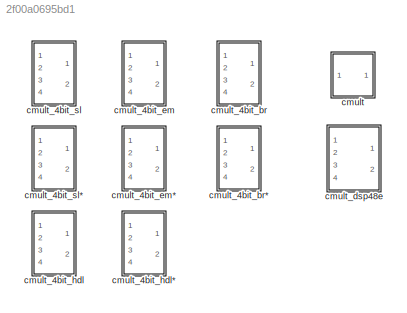
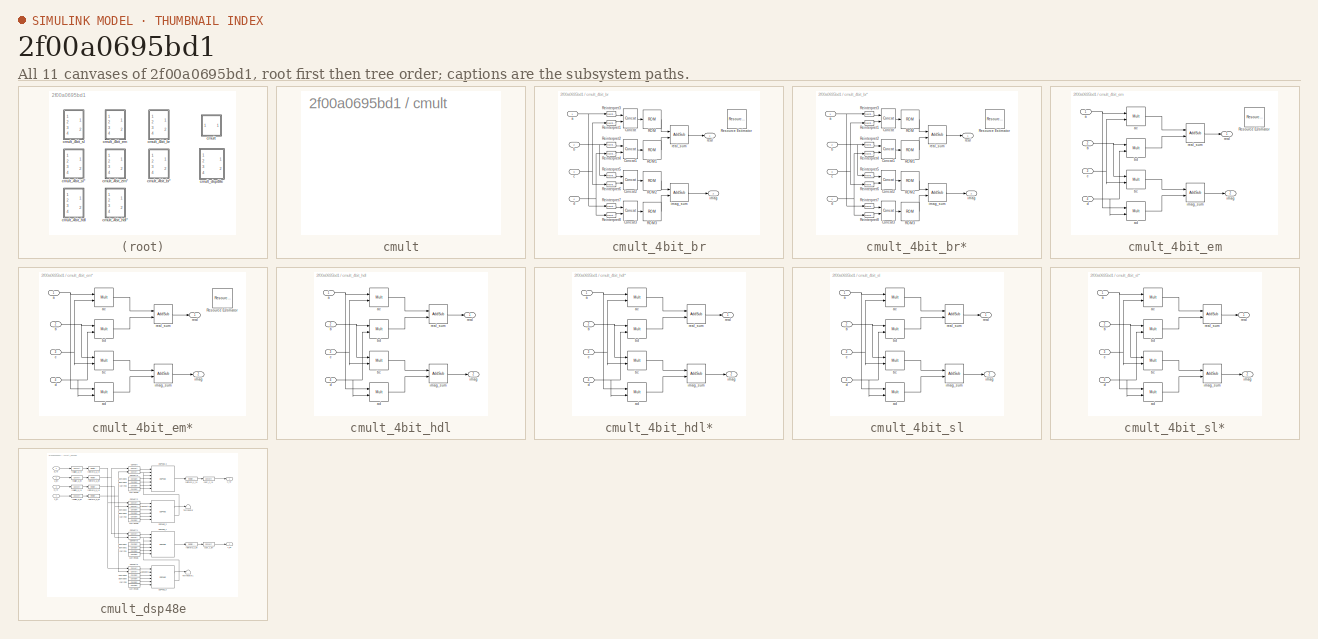
[diagram: thumbnail index - all 11 canvases of the model, root first then tree order]
MODEL slx_2f00a0695bd1
KIND library
CONFIG AbsTol = auto
CONFIG EnableMultiTasking = off
CONFIG FixedStep = auto
CONFIG MaxStep = auto
CONFIG MinStep = auto
CONFIG RelTol = 1e-3
CONFIG SampleTimeConstraint = Unconstrained
CONFIG Solver = ode45
CONFIG SolverName = ode45
CONFIG StartTime = 0.0
CONFIG StopTime = 10.0
BLOCK [SubSystem] cmult
  Ports = []
  RequestExecContextInheritance = off
  UserDataPersistent = on
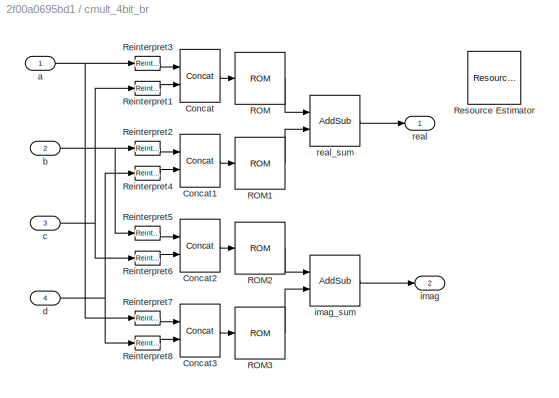
BLOCK [SubSystem] cmult_4bit_br
  Ports = [4, 2]
  RequestExecContextInheritance = off
BLOCK [SubSystem] cmult_4bit_br*
  Ports = [4, 2]
  RequestExecContextInheritance = off
BLOCK [Reference] cmult_4bit_br*/Concat  REF=xbsIndex_r4/Concat
  Ports = [2, 1]
  SourceBlock = xbsIndex_r4/Concat
  SourceType = Xilinx Bus Concatenator Block
BLOCK [Reference] cmult_4bit_br*/Concat1  REF=xbsIndex_r4/Concat
  Ports = [2, 1]
  SourceBlock = xbsIndex_r4/Concat
  SourceType = Xilinx Bus Concatenator Block
BLOCK [Reference] cmult_4bit_br*/Concat2  REF=xbsIndex_r4/Concat
  Ports = [2, 1]
  SourceBlock = xbsIndex_r4/Concat
  SourceType = Xilinx Bus Concatenator Block
BLOCK [Reference] cmult_4bit_br*/Concat3  REF=xbsIndex_r4/Concat
  Ports = [2, 1]
  SourceBlock = xbsIndex_r4/Concat
  SourceType = Xilinx Bus Concatenator Block
BLOCK [Reference] cmult_4bit_br*/ROM  REF=xbsIndex_r4/ROM
  Ports = [1, 1]
  SourceBlock = xbsIndex_r4/ROM
  SourceType = Xilinx Single Port Read-Only Memory Block
BLOCK [Reference] cmult_4bit_br*/ROM1  REF=xbsIndex_r4/ROM
  Ports = [1, 1]
  SourceBlock = xbsIndex_r4/ROM
  SourceType = Xilinx Single Port Read-Only Memory Block
BLOCK [Reference] cmult_4bit_br*/ROM2  REF=xbsIndex_r4/ROM
  Ports = [1, 1]
  SourceBlock = xbsIndex_r4/ROM
  SourceType = Xilinx Single Port Read-Only Memory Block
BLOCK [Reference] cmult_4bit_br*/ROM3  REF=xbsIndex_r4/ROM
  Ports = [1, 1]
  SourceBlock = xbsIndex_r4/ROM
  SourceType = Xilinx Single Port Read-Only Memory Block
BLOCK [Reference] cmult_4bit_br*/Reinterpret1  REF=xbsIndex_r4/Reinterpret
  Ports = [1, 1]
  SourceBlock = xbsIndex_r4/Reinterpret
  SourceType = Xilinx Type Reinterpreter Block
BLOCK [Reference] cmult_4bit_br*/Reinterpret2  REF=xbsIndex_r4/Reinterpret
  Ports = [1, 1]
  SourceBlock = xbsIndex_r4/Reinterpret
  SourceType = Xilinx Type Reinterpreter Block
BLOCK [Reference] cmult_4bit_br*/Reinterpret3  REF=xbsIndex_r4/Reinterpret
  Ports = [1, 1]
  SourceBlock = xbsIndex_r4/Reinterpret
  SourceType = Xilinx Type Reinterpreter Block
BLOCK [Reference] cmult_4bit_br*/Reinterpret4  REF=xbsIndex_r4/Reinterpret
  Ports = [1, 1]
  SourceBlock = xbsIndex_r4/Reinterpret
  SourceType = Xilinx Type Reinterpreter Block
BLOCK [Reference] cmult_4bit_br*/Reinterpret5  REF=xbsIndex_r4/Reinterpret
  Ports = [1, 1]
  SourceBlock = xbsIndex_r4/Reinterpret
  SourceType = Xilinx Type Reinterpreter Block
BLOCK [Reference] cmult_4bit_br*/Reinterpret6  REF=xbsIndex_r4/Reinterpret
  Ports = [1, 1]
  SourceBlock = xbsIndex_r4/Reinterpret
  SourceType = Xilinx Type Reinterpreter Block
BLOCK [Reference] cmult_4bit_br*/Reinterpret7  REF=xbsIndex_r4/Reinterpret
  Ports = [1, 1]
  SourceBlock = xbsIndex_r4/Reinterpret
  SourceType = Xilinx Type Reinterpreter Block
BLOCK [Reference] cmult_4bit_br*/Reinterpret8  REF=xbsIndex_r4/Reinterpret
  Ports = [1, 1]
  SourceBlock = xbsIndex_r4/Reinterpret
  SourceType = Xilinx Type Reinterpreter Block
BLOCK [Reference] cmult_4bit_br*/Resource Estimator  REF=xbsIndex_r4/Resource Estimator
  AttributesFormatString = Resource\nEstimator
  Ports = []
  SourceBlock = xbsIndex_r4/Resource Estimator
  SourceType = Xilinx Resource Estimator Block
  Tag = resEstTag
BLOCK [Inport] cmult_4bit_br*/a
  IconDisplay = Port number
BLOCK [Inport] cmult_4bit_br*/b
  IconDisplay = Port number
  Port = 2
BLOCK [Inport] cmult_4bit_br*/c
  IconDisplay = Port number
  Port = 3
BLOCK [Inport] cmult_4bit_br*/d
  IconDisplay = Port number
  Port = 4
BLOCK [Outport] cmult_4bit_br*/imag
  IconDisplay = Port number
  Port = 2
BLOCK [Reference] cmult_4bit_br*/imag_sum  REF=xbsIndex_r4/AddSub
  Ports = [2, 1]
  SourceBlock = xbsIndex_r4/AddSub
  SourceType = Xilinx Adder/Subtracter Block
BLOCK [Outport] cmult_4bit_br*/real
  IconDisplay = Port number
BLOCK [Reference] cmult_4bit_br*/real_sum  REF=xbsIndex_r4/AddSub
  Ports = [2, 1]
  SourceBlock = xbsIndex_r4/AddSub
  SourceType = Xilinx Adder/Subtracter Block
BLOCK [Reference] cmult_4bit_br/Concat  REF=xbsIndex_r4/Concat
  Ports = [2, 1]
  SourceBlock = xbsIndex_r4/Concat
  SourceType = Xilinx Bus Concatenator Block
BLOCK [Reference] cmult_4bit_br/Concat1  REF=xbsIndex_r4/Concat
  Ports = [2, 1]
  SourceBlock = xbsIndex_r4/Concat
  SourceType = Xilinx Bus Concatenator Block
BLOCK [Reference] cmult_4bit_br/Concat2  REF=xbsIndex_r4/Concat
  Ports = [2, 1]
  SourceBlock = xbsIndex_r4/Concat
  SourceType = Xilinx Bus Concatenator Block
BLOCK [Reference] cmult_4bit_br/Concat3  REF=xbsIndex_r4/Concat
  Ports = [2, 1]
  SourceBlock = xbsIndex_r4/Concat
  SourceType = Xilinx Bus Concatenator Block
BLOCK [Reference] cmult_4bit_br/ROM  REF=xbsIndex_r4/ROM
  Ports = [1, 1]
  SourceBlock = xbsIndex_r4/ROM
  SourceType = Xilinx Single Port Read-Only Memory Block
BLOCK [Reference] cmult_4bit_br/ROM1  REF=xbsIndex_r4/ROM
  Ports = [1, 1]
  SourceBlock = xbsIndex_r4/ROM
  SourceType = Xilinx Single Port Read-Only Memory Block
BLOCK [Reference] cmult_4bit_br/ROM2  REF=xbsIndex_r4/ROM
  Ports = [1, 1]
  SourceBlock = xbsIndex_r4/ROM
  SourceType = Xilinx Single Port Read-Only Memory Block
BLOCK [Reference] cmult_4bit_br/ROM3  REF=xbsIndex_r4/ROM
  Ports = [1, 1]
  SourceBlock = xbsIndex_r4/ROM
  SourceType = Xilinx Single Port Read-Only Memory Block
BLOCK [Reference] cmult_4bit_br/Reinterpret1  REF=xbsIndex_r4/Reinterpret
  Ports = [1, 1]
  SourceBlock = xbsIndex_r4/Reinterpret
  SourceType = Xilinx Type Reinterpreter Block
BLOCK [Reference] cmult_4bit_br/Reinterpret2  REF=xbsIndex_r4/Reinterpret
  Ports = [1, 1]
  SourceBlock = xbsIndex_r4/Reinterpret
  SourceType = Xilinx Type Reinterpreter Block
BLOCK [Reference] cmult_4bit_br/Reinterpret3  REF=xbsIndex_r4/Reinterpret
  Ports = [1, 1]
  SourceBlock = xbsIndex_r4/Reinterpret
  SourceType = Xilinx Type Reinterpreter Block
BLOCK [Reference] cmult_4bit_br/Reinterpret4  REF=xbsIndex_r4/Reinterpret
  Ports = [1, 1]
  SourceBlock = xbsIndex_r4/Reinterpret
  SourceType = Xilinx Type Reinterpreter Block
BLOCK [Reference] cmult_4bit_br/Reinterpret5  REF=xbsIndex_r4/Reinterpret
  Ports = [1, 1]
  SourceBlock = xbsIndex_r4/Reinterpret
  SourceType = Xilinx Type Reinterpreter Block
BLOCK [Reference] cmult_4bit_br/Reinterpret6  REF=xbsIndex_r4/Reinterpret
  Ports = [1, 1]
  SourceBlock = xbsIndex_r4/Reinterpret
  SourceType = Xilinx Type Reinterpreter Block
BLOCK [Reference] cmult_4bit_br/Reinterpret7  REF=xbsIndex_r4/Reinterpret
  Ports = [1, 1]
  SourceBlock = xbsIndex_r4/Reinterpret
  SourceType = Xilinx Type Reinterpreter Block
BLOCK [Reference] cmult_4bit_br/Reinterpret8  REF=xbsIndex_r4/Reinterpret
  Ports = [1, 1]
  SourceBlock = xbsIndex_r4/Reinterpret
  SourceType = Xilinx Type Reinterpreter Block
BLOCK [Reference] cmult_4bit_br/Resource Estimator  REF=xbsIndex_r4/Resource Estimator
  AttributesFormatString = Resource\nEstimator
  Ports = []
  SourceBlock = xbsIndex_r4/Resource Estimator
  SourceType = Xilinx Resource Estimator Block
  Tag = resEstTag
BLOCK [Inport] cmult_4bit_br/a
  IconDisplay = Port number
BLOCK [Inport] cmult_4bit_br/b
  IconDisplay = Port number
  Port = 2
BLOCK [Inport] cmult_4bit_br/c
  IconDisplay = Port number
  Port = 3
BLOCK [Inport] cmult_4bit_br/d
  IconDisplay = Port number
  Port = 4
BLOCK [Outport] cmult_4bit_br/imag
  IconDisplay = Port number
  Port = 2
BLOCK [Reference] cmult_4bit_br/imag_sum  REF=xbsIndex_r4/AddSub
  Ports = [2, 1]
  SourceBlock = xbsIndex_r4/AddSub
  SourceType = Xilinx Adder/Subtracter Block
BLOCK [Outport] cmult_4bit_br/real
  IconDisplay = Port number
BLOCK [Reference] cmult_4bit_br/real_sum  REF=xbsIndex_r4/AddSub
  Ports = [2, 1]
  SourceBlock = xbsIndex_r4/AddSub
  SourceType = Xilinx Adder/Subtracter Block
BLOCK [SubSystem] cmult_4bit_em
  Ports = [4, 2]
  RequestExecContextInheritance = off
BLOCK [SubSystem] cmult_4bit_em*
  Ports = [4, 2]
  RequestExecContextInheritance = off
BLOCK [Reference] cmult_4bit_em*/Resource Estimator  REF=xbsIndex_r4/Resource Estimator
  AttributesFormatString = Resource\nEstimator
  Ports = []
  SourceBlock = xbsIndex_r4/Resource Estimator
  SourceType = Xilinx Resource Estimator Block
  Tag = resEstTag
BLOCK [Inport] cmult_4bit_em*/a
  IconDisplay = Port number
BLOCK [Reference] cmult_4bit_em*/ac  REF=xbsIndex_r4/Mult
  Ports = [2, 1]
  SourceBlock = xbsIndex_r4/Mult
  SourceType = Xilinx Multiplier Block
BLOCK [Reference] cmult_4bit_em*/ad  REF=xbsIndex_r4/Mult
  Ports = [2, 1]
  SourceBlock = xbsIndex_r4/Mult
  SourceType = Xilinx Multiplier Block
BLOCK [Inport] cmult_4bit_em*/b
  IconDisplay = Port number
  Port = 2
BLOCK [Reference] cmult_4bit_em*/bc  REF=xbsIndex_r4/Mult
  Ports = [2, 1]
  SourceBlock = xbsIndex_r4/Mult
  SourceType = Xilinx Multiplier Block
BLOCK [Reference] cmult_4bit_em*/bd  REF=xbsIndex_r4/Mult
  Ports = [2, 1]
  SourceBlock = xbsIndex_r4/Mult
  SourceType = Xilinx Multiplier Block
BLOCK [Inport] cmult_4bit_em*/c
  IconDisplay = Port number
  Port = 3
BLOCK [Inport] cmult_4bit_em*/d
  IconDisplay = Port number
  Port = 4
BLOCK [Outport] cmult_4bit_em*/imag
  IconDisplay = Port number
  Port = 2
BLOCK [Reference] cmult_4bit_em*/imag_sum  REF=xbsIndex_r4/AddSub
  Ports = [2, 1]
  SourceBlock = xbsIndex_r4/AddSub
  SourceType = Xilinx Adder/Subtracter Block
BLOCK [Outport] cmult_4bit_em*/real
  IconDisplay = Port number
BLOCK [Reference] cmult_4bit_em*/real_sum  REF=xbsIndex_r4/AddSub
  Ports = [2, 1]
  SourceBlock = xbsIndex_r4/AddSub
  SourceType = Xilinx Adder/Subtracter Block
BLOCK [Reference] cmult_4bit_em/Resource Estimator  REF=xbsIndex_r4/Resource Estimator
  AttributesFormatString = Resource\nEstimator
  Ports = []
  SourceBlock = xbsIndex_r4/Resource Estimator
  SourceType = Xilinx Resource Estimator Block
  Tag = resEstTag
BLOCK [Inport] cmult_4bit_em/a
  IconDisplay = Port number
BLOCK [Reference] cmult_4bit_em/ac  REF=xbsIndex_r4/Mult
  Ports = [2, 1]
  SourceBlock = xbsIndex_r4/Mult
  SourceType = Xilinx Multiplier Block
BLOCK [Reference] cmult_4bit_em/ad  REF=xbsIndex_r4/Mult
  Ports = [2, 1]
  SourceBlock = xbsIndex_r4/Mult
  SourceType = Xilinx Multiplier Block
BLOCK [Inport] cmult_4bit_em/b
  IconDisplay = Port number
  Port = 2
BLOCK [Reference] cmult_4bit_em/bc  REF=xbsIndex_r4/Mult
  Ports = [2, 1]
  SourceBlock = xbsIndex_r4/Mult
  SourceType = Xilinx Multiplier Block
BLOCK [Reference] cmult_4bit_em/bd  REF=xbsIndex_r4/Mult
  Ports = [2, 1]
  SourceBlock = xbsIndex_r4/Mult
  SourceType = Xilinx Multiplier Block
BLOCK [Inport] cmult_4bit_em/c
  IconDisplay = Port number
  Port = 3
BLOCK [Inport] cmult_4bit_em/d
  IconDisplay = Port number
  Port = 4
BLOCK [Outport] cmult_4bit_em/imag
  IconDisplay = Port number
  Port = 2
BLOCK [Reference] cmult_4bit_em/imag_sum  REF=xbsIndex_r4/AddSub
  Ports = [2, 1]
  SourceBlock = xbsIndex_r4/AddSub
  SourceType = Xilinx Adder/Subtracter Block
BLOCK [Outport] cmult_4bit_em/real
  IconDisplay = Port number
BLOCK [Reference] cmult_4bit_em/real_sum  REF=xbsIndex_r4/AddSub
  Ports = [2, 1]
  SourceBlock = xbsIndex_r4/AddSub
  SourceType = Xilinx Adder/Subtracter Block
BLOCK [SubSystem] cmult_4bit_hdl
  Ports = [4, 2]
  RequestExecContextInheritance = off
BLOCK [SubSystem] cmult_4bit_hdl*
  Ports = [4, 2]
  RequestExecContextInheritance = off
BLOCK [Inport] cmult_4bit_hdl*/a
  IconDisplay = Port number
BLOCK [Reference] cmult_4bit_hdl*/ac  REF=xbsIndex_r4/Mult
  Ports = [2, 1]
  SourceBlock = xbsIndex_r4/Mult
  SourceType = Xilinx Multiplier Block
BLOCK [Reference] cmult_4bit_hdl*/ad  REF=xbsIndex_r4/Mult
  Ports = [2, 1]
  SourceBlock = xbsIndex_r4/Mult
  SourceType = Xilinx Multiplier Block
BLOCK [Inport] cmult_4bit_hdl*/b
  IconDisplay = Port number
  Port = 2
BLOCK [Reference] cmult_4bit_hdl*/bc  REF=xbsIndex_r4/Mult
  Ports = [2, 1]
  SourceBlock = xbsIndex_r4/Mult
  SourceType = Xilinx Multiplier Block
BLOCK [Reference] cmult_4bit_hdl*/bd  REF=xbsIndex_r4/Mult
  Ports = [2, 1]
  SourceBlock = xbsIndex_r4/Mult
  SourceType = Xilinx Multiplier Block
BLOCK [Inport] cmult_4bit_hdl*/c
  IconDisplay = Port number
  Port = 3
BLOCK [Inport] cmult_4bit_hdl*/d
  IconDisplay = Port number
  Port = 4
BLOCK [Outport] cmult_4bit_hdl*/imag
  IconDisplay = Port number
  Port = 2
BLOCK [Reference] cmult_4bit_hdl*/imag_sum  REF=xbsIndex_r4/AddSub
  Ports = [2, 1]
  SourceBlock = xbsIndex_r4/AddSub
  SourceType = Xilinx Adder/Subtracter Block
BLOCK [Outport] cmult_4bit_hdl*/real
  IconDisplay = Port number
BLOCK [Reference] cmult_4bit_hdl*/real_sum  REF=xbsIndex_r4/AddSub
  Ports = [2, 1]
  SourceBlock = xbsIndex_r4/AddSub
  SourceType = Xilinx Adder/Subtracter Block
BLOCK [Inport] cmult_4bit_hdl/a
  IconDisplay = Port number
BLOCK [Reference] cmult_4bit_hdl/ac  REF=xbsIndex_r4/Mult
  Ports = [2, 1]
  SourceBlock = xbsIndex_r4/Mult
  SourceType = Xilinx Multiplier Block
BLOCK [Reference] cmult_4bit_hdl/ad  REF=xbsIndex_r4/Mult
  Ports = [2, 1]
  SourceBlock = xbsIndex_r4/Mult
  SourceType = Xilinx Multiplier Block
BLOCK [Inport] cmult_4bit_hdl/b
  IconDisplay = Port number
  Port = 2
BLOCK [Reference] cmult_4bit_hdl/bc  REF=xbsIndex_r4/Mult
  Ports = [2, 1]
  SourceBlock = xbsIndex_r4/Mult
  SourceType = Xilinx Multiplier Block
BLOCK [Reference] cmult_4bit_hdl/bd  REF=xbsIndex_r4/Mult
  Ports = [2, 1]
  SourceBlock = xbsIndex_r4/Mult
  SourceType = Xilinx Multiplier Block
BLOCK [Inport] cmult_4bit_hdl/c
  IconDisplay = Port number
  Port = 3
BLOCK [Inport] cmult_4bit_hdl/d
  IconDisplay = Port number
  Port = 4
BLOCK [Outport] cmult_4bit_hdl/imag
  IconDisplay = Port number
  Port = 2
BLOCK [Reference] cmult_4bit_hdl/imag_sum  REF=xbsIndex_r4/AddSub
  Ports = [2, 1]
  SourceBlock = xbsIndex_r4/AddSub
  SourceType = Xilinx Adder/Subtracter Block
BLOCK [Outport] cmult_4bit_hdl/real
  IconDisplay = Port number
BLOCK [Reference] cmult_4bit_hdl/real_sum  REF=xbsIndex_r4/AddSub
  Ports = [2, 1]
  SourceBlock = xbsIndex_r4/AddSub
  SourceType = Xilinx Adder/Subtracter Block
BLOCK [SubSystem] cmult_4bit_sl
  Ports = [4, 2]
  RequestExecContextInheritance = off
BLOCK [SubSystem] cmult_4bit_sl*
  Ports = [4, 2]
  RequestExecContextInheritance = off
BLOCK [Inport] cmult_4bit_sl*/a
  IconDisplay = Port number
BLOCK [Reference] cmult_4bit_sl*/ac  REF=xbsIndex_r4/Mult
  Ports = [2, 1]
  SourceBlock = xbsIndex_r4/Mult
  SourceType = Xilinx Multiplier Block
BLOCK [Reference] cmult_4bit_sl*/ad  REF=xbsIndex_r4/Mult
  Ports = [2, 1]
  SourceBlock = xbsIndex_r4/Mult
  SourceType = Xilinx Multiplier Block
BLOCK [Inport] cmult_4bit_sl*/b
  IconDisplay = Port number
  Port = 2
BLOCK [Reference] cmult_4bit_sl*/bc  REF=xbsIndex_r4/Mult
  Ports = [2, 1]
  SourceBlock = xbsIndex_r4/Mult
  SourceType = Xilinx Multiplier Block
BLOCK [Reference] cmult_4bit_sl*/bd  REF=xbsIndex_r4/Mult
  Ports = [2, 1]
  SourceBlock = xbsIndex_r4/Mult
  SourceType = Xilinx Multiplier Block
BLOCK [Inport] cmult_4bit_sl*/c
  IconDisplay = Port number
  Port = 3
BLOCK [Inport] cmult_4bit_sl*/d
  IconDisplay = Port number
  Port = 4
BLOCK [Outport] cmult_4bit_sl*/imag
  IconDisplay = Port number
  Port = 2
BLOCK [Reference] cmult_4bit_sl*/imag_sum  REF=xbsIndex_r4/AddSub
  Ports = [2, 1]
  SourceBlock = xbsIndex_r4/AddSub
  SourceType = Xilinx Adder/Subtracter Block
BLOCK [Outport] cmult_4bit_sl*/real
  IconDisplay = Port number
BLOCK [Reference] cmult_4bit_sl*/real_sum  REF=xbsIndex_r4/AddSub
  Ports = [2, 1]
  SourceBlock = xbsIndex_r4/AddSub
  SourceType = Xilinx Adder/Subtracter Block
BLOCK [Inport] cmult_4bit_sl/a
  IconDisplay = Port number
BLOCK [Reference] cmult_4bit_sl/ac  REF=xbsIndex_r4/Mult
  Ports = [2, 1]
  SourceBlock = xbsIndex_r4/Mult
  SourceType = Xilinx Multiplier Block
BLOCK [Reference] cmult_4bit_sl/ad  REF=xbsIndex_r4/Mult
  Ports = [2, 1]
  SourceBlock = xbsIndex_r4/Mult
  SourceType = Xilinx Multiplier Block
BLOCK [Inport] cmult_4bit_sl/b
  IconDisplay = Port number
  Port = 2
BLOCK [Reference] cmult_4bit_sl/bc  REF=xbsIndex_r4/Mult
  Ports = [2, 1]
  SourceBlock = xbsIndex_r4/Mult
  SourceType = Xilinx Multiplier Block
BLOCK [Reference] cmult_4bit_sl/bd  REF=xbsIndex_r4/Mult
  Ports = [2, 1]
  SourceBlock = xbsIndex_r4/Mult
  SourceType = Xilinx Multiplier Block
BLOCK [Inport] cmult_4bit_sl/c
  IconDisplay = Port number
  Port = 3
BLOCK [Inport] cmult_4bit_sl/d
  IconDisplay = Port number
  Port = 4
BLOCK [Outport] cmult_4bit_sl/imag
  IconDisplay = Port number
  Port = 2
BLOCK [Reference] cmult_4bit_sl/imag_sum  REF=xbsIndex_r4/AddSub
  Ports = [2, 1]
  SourceBlock = xbsIndex_r4/AddSub
  SourceType = Xilinx Adder/Subtracter Block
BLOCK [Outport] cmult_4bit_sl/real
  IconDisplay = Port number
BLOCK [Reference] cmult_4bit_sl/real_sum  REF=xbsIndex_r4/AddSub
  Ports = [2, 1]
  SourceBlock = xbsIndex_r4/AddSub
  SourceType = Xilinx Adder/Subtracter Block
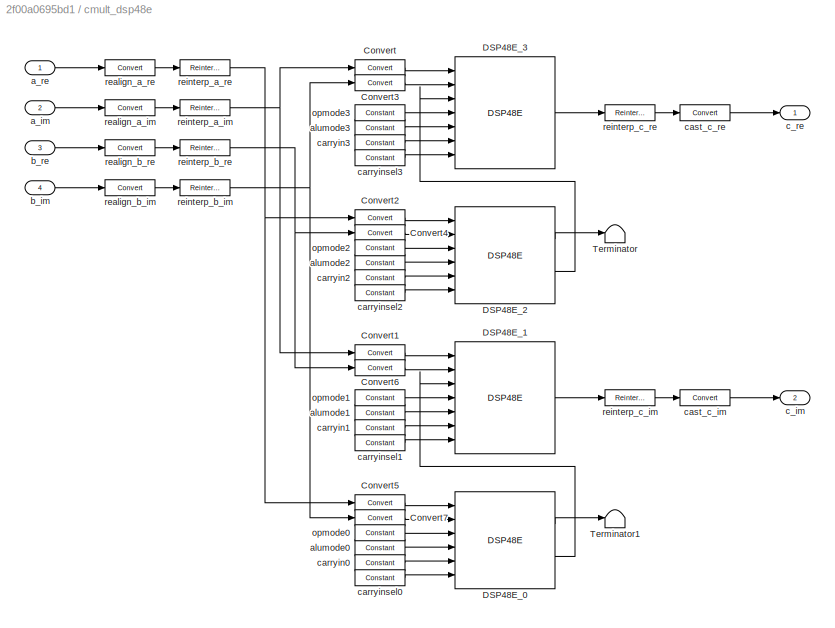
BLOCK [SubSystem] cmult_dsp48e
  AttributesFormatString = 18_17 * 18_17 ==> 37_34\nLatency=4
  Ports = [4, 2]
  RequestExecContextInheritance = off
  UserDataPersistent = on
BLOCK [Reference] cmult_dsp48e/Convert  REF=xbsIndex_r4/Convert
  Ports = [1, 1]
  SourceBlock = xbsIndex_r4/Convert
  SourceType = Xilinx Type Converter Block
BLOCK [Reference] cmult_dsp48e/Convert1  REF=xbsIndex_r4/Convert
  Ports = [1, 1]
  SourceBlock = xbsIndex_r4/Convert
  SourceType = Xilinx Type Converter Block
BLOCK [Reference] cmult_dsp48e/Convert2  REF=xbsIndex_r4/Convert
  Ports = [1, 1]
  SourceBlock = xbsIndex_r4/Convert
  SourceType = Xilinx Type Converter Block
BLOCK [Reference] cmult_dsp48e/Convert3  REF=xbsIndex_r4/Convert
  Ports = [1, 1]
  SourceBlock = xbsIndex_r4/Convert
  SourceType = Xilinx Type Converter Block
BLOCK [Reference] cmult_dsp48e/Convert4  REF=xbsIndex_r4/Convert
  Ports = [1, 1]
  SourceBlock = xbsIndex_r4/Convert
  SourceType = Xilinx Type Converter Block
BLOCK [Reference] cmult_dsp48e/Convert5  REF=xbsIndex_r4/Convert
  Ports = [1, 1]
  SourceBlock = xbsIndex_r4/Convert
  SourceType = Xilinx Type Converter Block
BLOCK [Reference] cmult_dsp48e/Convert6  REF=xbsIndex_r4/Convert
  Ports = [1, 1]
  SourceBlock = xbsIndex_r4/Convert
  SourceType = Xilinx Type Converter Block
BLOCK [Reference] cmult_dsp48e/Convert7  REF=xbsIndex_r4/Convert
  Ports = [1, 1]
  SourceBlock = xbsIndex_r4/Convert
  SourceType = Xilinx Type Converter Block
BLOCK [Reference] cmult_dsp48e/DSP48E_0  REF=xbsIndex_r4/DSP48E
  Ports = [6, 2]
  SourceBlock = xbsIndex_r4/DSP48E
  SourceType = Xilinx DSP48E Block
BLOCK [Reference] cmult_dsp48e/DSP48E_1  REF=xbsIndex_r4/DSP48E
  Ports = [7, 1]
  SourceBlock = xbsIndex_r4/DSP48E
  SourceType = Xilinx DSP48E Block
BLOCK [Reference] cmult_dsp48e/DSP48E_2  REF=xbsIndex_r4/DSP48E
  Ports = [6, 2]
  SourceBlock = xbsIndex_r4/DSP48E
  SourceType = Xilinx DSP48E Block
BLOCK [Reference] cmult_dsp48e/DSP48E_3  REF=xbsIndex_r4/DSP48E
  Ports = [7, 1]
  SourceBlock = xbsIndex_r4/DSP48E
  SourceType = Xilinx DSP48E Block
BLOCK [Terminator] cmult_dsp48e/Terminator
BLOCK [Terminator] cmult_dsp48e/Terminator1
BLOCK [Inport] cmult_dsp48e/a_im
  IconDisplay = Port number
  Port = 2
BLOCK [Inport] cmult_dsp48e/a_re
  IconDisplay = Port number
BLOCK [Reference] cmult_dsp48e/alumode0  REF=xbsIndex_r4/Constant
  Ports = [0, 1]
  SourceBlock = xbsIndex_r4/Constant
  SourceType = Xilinx Constant Block Block
BLOCK [Reference] cmult_dsp48e/alumode1  REF=xbsIndex_r4/Constant
  Ports = [0, 1]
  SourceBlock = xbsIndex_r4/Constant
  SourceType = Xilinx Constant Block Block
BLOCK [Reference] cmult_dsp48e/alumode2  REF=xbsIndex_r4/Constant
  Ports = [0, 1]
  SourceBlock = xbsIndex_r4/Constant
  SourceType = Xilinx Constant Block Block
BLOCK [Reference] cmult_dsp48e/alumode3  REF=xbsIndex_r4/Constant
  Ports = [0, 1]
  SourceBlock = xbsIndex_r4/Constant
  SourceType = Xilinx Constant Block Block
BLOCK [Inport] cmult_dsp48e/b_im
  IconDisplay = Port number
  Port = 4
BLOCK [Inport] cmult_dsp48e/b_re
  IconDisplay = Port number
  Port = 3
BLOCK [Outport] cmult_dsp48e/c_im
  IconDisplay = Port number
  Port = 2
BLOCK [Outport] cmult_dsp48e/c_re
  IconDisplay = Port number
BLOCK [Reference] cmult_dsp48e/carryin0  REF=xbsIndex_r4/Constant
  Ports = [0, 1]
  SourceBlock = xbsIndex_r4/Constant
  SourceType = Xilinx Constant Block Block
BLOCK [Reference] cmult_dsp48e/carryin1  REF=xbsIndex_r4/Constant
  Ports = [0, 1]
  SourceBlock = xbsIndex_r4/Constant
  SourceType = Xilinx Constant Block Block
BLOCK [Reference] cmult_dsp48e/carryin2  REF=xbsIndex_r4/Constant
  Ports = [0, 1]
  SourceBlock = xbsIndex_r4/Constant
  SourceType = Xilinx Constant Block Block
BLOCK [Reference] cmult_dsp48e/carryin3  REF=xbsIndex_r4/Constant
  Ports = [0, 1]
  SourceBlock = xbsIndex_r4/Constant
  SourceType = Xilinx Constant Block Block
BLOCK [Reference] cmult_dsp48e/carryinsel0  REF=xbsIndex_r4/Constant
  Ports = [0, 1]
  SourceBlock = xbsIndex_r4/Constant
  SourceType = Xilinx Constant Block Block
BLOCK [Reference] cmult_dsp48e/carryinsel1  REF=xbsIndex_r4/Constant
  Ports = [0, 1]
  SourceBlock = xbsIndex_r4/Constant
  SourceType = Xilinx Constant Block Block
BLOCK [Reference] cmult_dsp48e/carryinsel2  REF=xbsIndex_r4/Constant
  Ports = [0, 1]
  SourceBlock = xbsIndex_r4/Constant
  SourceType = Xilinx Constant Block Block
BLOCK [Reference] cmult_dsp48e/carryinsel3  REF=xbsIndex_r4/Constant
  Ports = [0, 1]
  SourceBlock = xbsIndex_r4/Constant
  SourceType = Xilinx Constant Block Block
BLOCK [Reference] cmult_dsp48e/cast_c_im  REF=xbsIndex_r4/Convert
  Ports = [1, 1]
  SourceBlock = xbsIndex_r4/Convert
  SourceType = Xilinx Type Converter Block
BLOCK [Reference] cmult_dsp48e/cast_c_re  REF=xbsIndex_r4/Convert
  Ports = [1, 1]
  SourceBlock = xbsIndex_r4/Convert
  SourceType = Xilinx Type Converter Block
BLOCK [Reference] cmult_dsp48e/opmode0  REF=xbsIndex_r4/Constant
  Ports = [0, 1]
  SourceBlock = xbsIndex_r4/Constant
  SourceType = Xilinx Constant Block Block
BLOCK [Reference] cmult_dsp48e/opmode1  REF=xbsIndex_r4/Constant
  Ports = [0, 1]
  SourceBlock = xbsIndex_r4/Constant
  SourceType = Xilinx Constant Block Block
BLOCK [Reference] cmult_dsp48e/opmode2  REF=xbsIndex_r4/Constant
  Ports = [0, 1]
  SourceBlock = xbsIndex_r4/Constant
  SourceType = Xilinx Constant Block Block
BLOCK [Reference] cmult_dsp48e/opmode3  REF=xbsIndex_r4/Constant
  Ports = [0, 1]
  SourceBlock = xbsIndex_r4/Constant
  SourceType = Xilinx Constant Block Block
BLOCK [Reference] cmult_dsp48e/realign_a_im  REF=xbsIndex_r4/Convert
  Ports = [1, 1]
  SourceBlock = xbsIndex_r4/Convert
  SourceType = Xilinx Type Converter Block
BLOCK [Reference] cmult_dsp48e/realign_a_re  REF=xbsIndex_r4/Convert
  Ports = [1, 1]
  SourceBlock = xbsIndex_r4/Convert
  SourceType = Xilinx Type Converter Block
BLOCK [Reference] cmult_dsp48e/realign_b_im  REF=xbsIndex_r4/Convert
  Ports = [1, 1]
  SourceBlock = xbsIndex_r4/Convert
  SourceType = Xilinx Type Converter Block
BLOCK [Reference] cmult_dsp48e/realign_b_re  REF=xbsIndex_r4/Convert
  Ports = [1, 1]
  SourceBlock = xbsIndex_r4/Convert
  SourceType = Xilinx Type Converter Block
BLOCK [Reference] cmult_dsp48e/reinterp_a_im  REF=xbsIndex_r4/Reinterpret
  Ports = [1, 1]
  SourceBlock = xbsIndex_r4/Reinterpret
  SourceType = Xilinx Type Reinterpreter Block
BLOCK [Reference] cmult_dsp48e/reinterp_a_re  REF=xbsIndex_r4/Reinterpret
  Ports = [1, 1]
  SourceBlock = xbsIndex_r4/Reinterpret
  SourceType = Xilinx Type Reinterpreter Block
BLOCK [Reference] cmult_dsp48e/reinterp_b_im  REF=xbsIndex_r4/Reinterpret
  Ports = [1, 1]
  SourceBlock = xbsIndex_r4/Reinterpret
  SourceType = Xilinx Type Reinterpreter Block
BLOCK [Reference] cmult_dsp48e/reinterp_b_re  REF=xbsIndex_r4/Reinterpret
  Ports = [1, 1]
  SourceBlock = xbsIndex_r4/Reinterpret
  SourceType = Xilinx Type Reinterpreter Block
BLOCK [Reference] cmult_dsp48e/reinterp_c_im  REF=xbsIndex_r4/Reinterpret
  Ports = [1, 1]
  SourceBlock = xbsIndex_r4/Reinterpret
  SourceType = Xilinx Type Reinterpreter Block
BLOCK [Reference] cmult_dsp48e/reinterp_c_re  REF=xbsIndex_r4/Reinterpret
  Ports = [1, 1]
  SourceBlock = xbsIndex_r4/Reinterpret
  SourceType = Xilinx Type Reinterpreter Block
LINE cmult_4bit_br*/Concat1:1 -> cmult_4bit_br*/ROM1:1
LINE cmult_4bit_br*/Concat2:1 -> cmult_4bit_br*/ROM2:1
LINE cmult_4bit_br*/Concat3:1 -> cmult_4bit_br*/ROM3:1
LINE cmult_4bit_br*/Concat:1 -> cmult_4bit_br*/ROM:1
LINE cmult_4bit_br*/ROM1:1 -> cmult_4bit_br*/real_sum:2
LINE cmult_4bit_br*/ROM2:1 -> cmult_4bit_br*/imag_sum:1
LINE cmult_4bit_br*/ROM3:1 -> cmult_4bit_br*/imag_sum:2
LINE cmult_4bit_br*/ROM:1 -> cmult_4bit_br*/real_sum:1
LINE cmult_4bit_br*/Reinterpret1:1 -> cmult_4bit_br*/Concat:2
LINE cmult_4bit_br*/Reinterpret2:1 -> cmult_4bit_br*/Concat1:1
LINE cmult_4bit_br*/Reinterpret3:1 -> cmult_4bit_br*/Concat:1
LINE cmult_4bit_br*/Reinterpret4:1 -> cmult_4bit_br*/Concat1:2
LINE cmult_4bit_br*/Reinterpret5:1 -> cmult_4bit_br*/Concat2:1
LINE cmult_4bit_br*/Reinterpret6:1 -> cmult_4bit_br*/Concat2:2
LINE cmult_4bit_br*/Reinterpret7:1 -> cmult_4bit_br*/Concat3:1
LINE cmult_4bit_br*/Reinterpret8:1 -> cmult_4bit_br*/Concat3:2
NET cmult_4bit_br*/a:1 -> cmult_4bit_br*/Reinterpret3:1, cmult_4bit_br*/Reinterpret7:1
NET cmult_4bit_br*/b:1 -> cmult_4bit_br*/Reinterpret2:1, cmult_4bit_br*/Reinterpret5:1
NET cmult_4bit_br*/c:1 -> cmult_4bit_br*/Reinterpret1:1, cmult_4bit_br*/Reinterpret6:1
NET cmult_4bit_br*/d:1 -> cmult_4bit_br*/Reinterpret4:1, cmult_4bit_br*/Reinterpret8:1
LINE cmult_4bit_br*/imag_sum:1 -> cmult_4bit_br*/imag:1
LINE cmult_4bit_br*/real_sum:1 -> cmult_4bit_br*/real:1
LINE cmult_4bit_br/Concat1:1 -> cmult_4bit_br/ROM1:1
LINE cmult_4bit_br/Concat2:1 -> cmult_4bit_br/ROM2:1
LINE cmult_4bit_br/Concat3:1 -> cmult_4bit_br/ROM3:1
LINE cmult_4bit_br/Concat:1 -> cmult_4bit_br/ROM:1
LINE cmult_4bit_br/ROM1:1 -> cmult_4bit_br/real_sum:2
LINE cmult_4bit_br/ROM2:1 -> cmult_4bit_br/imag_sum:1
LINE cmult_4bit_br/ROM3:1 -> cmult_4bit_br/imag_sum:2
LINE cmult_4bit_br/ROM:1 -> cmult_4bit_br/real_sum:1
LINE cmult_4bit_br/Reinterpret1:1 -> cmult_4bit_br/Concat:2
LINE cmult_4bit_br/Reinterpret2:1 -> cmult_4bit_br/Concat1:1
LINE cmult_4bit_br/Reinterpret3:1 -> cmult_4bit_br/Concat:1
LINE cmult_4bit_br/Reinterpret4:1 -> cmult_4bit_br/Concat1:2
LINE cmult_4bit_br/Reinterpret5:1 -> cmult_4bit_br/Concat2:1
LINE cmult_4bit_br/Reinterpret6:1 -> cmult_4bit_br/Concat2:2
LINE cmult_4bit_br/Reinterpret7:1 -> cmult_4bit_br/Concat3:1
LINE cmult_4bit_br/Reinterpret8:1 -> cmult_4bit_br/Concat3:2
NET cmult_4bit_br/a:1 -> cmult_4bit_br/Reinterpret3:1, cmult_4bit_br/Reinterpret7:1
NET cmult_4bit_br/b:1 -> cmult_4bit_br/Reinterpret2:1, cmult_4bit_br/Reinterpret5:1
NET cmult_4bit_br/c:1 -> cmult_4bit_br/Reinterpret1:1, cmult_4bit_br/Reinterpret6:1
NET cmult_4bit_br/d:1 -> cmult_4bit_br/Reinterpret4:1, cmult_4bit_br/Reinterpret8:1
LINE cmult_4bit_br/imag_sum:1 -> cmult_4bit_br/imag:1
LINE cmult_4bit_br/real_sum:1 -> cmult_4bit_br/real:1
NET cmult_4bit_em*/a:1 -> cmult_4bit_em*/ac:1, cmult_4bit_em*/ad:1
LINE cmult_4bit_em*/ac:1 -> cmult_4bit_em*/real_sum:1
LINE cmult_4bit_em*/ad:1 -> cmult_4bit_em*/imag_sum:2
NET cmult_4bit_em*/b:1 -> cmult_4bit_em*/bc:1, cmult_4bit_em*/bd:1
LINE cmult_4bit_em*/bc:1 -> cmult_4bit_em*/imag_sum:1
LINE cmult_4bit_em*/bd:1 -> cmult_4bit_em*/real_sum:2
NET cmult_4bit_em*/c:1 -> cmult_4bit_em*/ac:2, cmult_4bit_em*/bc:2
NET cmult_4bit_em*/d:1 -> cmult_4bit_em*/ad:2, cmult_4bit_em*/bd:2
LINE cmult_4bit_em*/imag_sum:1 -> cmult_4bit_em*/imag:1
LINE cmult_4bit_em*/real_sum:1 -> cmult_4bit_em*/real:1
NET cmult_4bit_em/a:1 -> cmult_4bit_em/ac:1, cmult_4bit_em/ad:1
LINE cmult_4bit_em/ac:1 -> cmult_4bit_em/real_sum:1
LINE cmult_4bit_em/ad:1 -> cmult_4bit_em/imag_sum:2
NET cmult_4bit_em/b:1 -> cmult_4bit_em/bc:1, cmult_4bit_em/bd:1
LINE cmult_4bit_em/bc:1 -> cmult_4bit_em/imag_sum:1
LINE cmult_4bit_em/bd:1 -> cmult_4bit_em/real_sum:2
NET cmult_4bit_em/c:1 -> cmult_4bit_em/ac:2, cmult_4bit_em/bc:2
NET cmult_4bit_em/d:1 -> cmult_4bit_em/ad:2, cmult_4bit_em/bd:2
LINE cmult_4bit_em/imag_sum:1 -> cmult_4bit_em/imag:1
LINE cmult_4bit_em/real_sum:1 -> cmult_4bit_em/real:1
NET cmult_4bit_hdl*/a:1 -> cmult_4bit_hdl*/ac:1, cmult_4bit_hdl*/ad:1
LINE cmult_4bit_hdl*/ac:1 -> cmult_4bit_hdl*/real_sum:1
LINE cmult_4bit_hdl*/ad:1 -> cmult_4bit_hdl*/imag_sum:2
NET cmult_4bit_hdl*/b:1 -> cmult_4bit_hdl*/bc:1, cmult_4bit_hdl*/bd:1
LINE cmult_4bit_hdl*/bc:1 -> cmult_4bit_hdl*/imag_sum:1
LINE cmult_4bit_hdl*/bd:1 -> cmult_4bit_hdl*/real_sum:2
NET cmult_4bit_hdl*/c:1 -> cmult_4bit_hdl*/ac:2, cmult_4bit_hdl*/bc:2
NET cmult_4bit_hdl*/d:1 -> cmult_4bit_hdl*/ad:2, cmult_4bit_hdl*/bd:2
LINE cmult_4bit_hdl*/imag_sum:1 -> cmult_4bit_hdl*/imag:1
LINE cmult_4bit_hdl*/real_sum:1 -> cmult_4bit_hdl*/real:1
NET cmult_4bit_hdl/a:1 -> cmult_4bit_hdl/ac:1, cmult_4bit_hdl/ad:1
LINE cmult_4bit_hdl/ac:1 -> cmult_4bit_hdl/real_sum:1
LINE cmult_4bit_hdl/ad:1 -> cmult_4bit_hdl/imag_sum:2
NET cmult_4bit_hdl/b:1 -> cmult_4bit_hdl/bc:1, cmult_4bit_hdl/bd:1
LINE cmult_4bit_hdl/bc:1 -> cmult_4bit_hdl/imag_sum:1
LINE cmult_4bit_hdl/bd:1 -> cmult_4bit_hdl/real_sum:2
NET cmult_4bit_hdl/c:1 -> cmult_4bit_hdl/ac:2, cmult_4bit_hdl/bc:2
NET cmult_4bit_hdl/d:1 -> cmult_4bit_hdl/ad:2, cmult_4bit_hdl/bd:2
LINE cmult_4bit_hdl/imag_sum:1 -> cmult_4bit_hdl/imag:1
LINE cmult_4bit_hdl/real_sum:1 -> cmult_4bit_hdl/real:1
NET cmult_4bit_sl*/a:1 -> cmult_4bit_sl*/ac:1, cmult_4bit_sl*/ad:1
LINE cmult_4bit_sl*/ac:1 -> cmult_4bit_sl*/real_sum:1
LINE cmult_4bit_sl*/ad:1 -> cmult_4bit_sl*/imag_sum:2
NET cmult_4bit_sl*/b:1 -> cmult_4bit_sl*/bc:1, cmult_4bit_sl*/bd:1
LINE cmult_4bit_sl*/bc:1 -> cmult_4bit_sl*/imag_sum:1
LINE cmult_4bit_sl*/bd:1 -> cmult_4bit_sl*/real_sum:2
NET cmult_4bit_sl*/c:1 -> cmult_4bit_sl*/ac:2, cmult_4bit_sl*/bc:2
NET cmult_4bit_sl*/d:1 -> cmult_4bit_sl*/ad:2, cmult_4bit_sl*/bd:2
LINE cmult_4bit_sl*/imag_sum:1 -> cmult_4bit_sl*/imag:1
LINE cmult_4bit_sl*/real_sum:1 -> cmult_4bit_sl*/real:1
NET cmult_4bit_sl/a:1 -> cmult_4bit_sl/ac:1, cmult_4bit_sl/ad:1
LINE cmult_4bit_sl/ac:1 -> cmult_4bit_sl/real_sum:1
LINE cmult_4bit_sl/ad:1 -> cmult_4bit_sl/imag_sum:2
NET cmult_4bit_sl/b:1 -> cmult_4bit_sl/bc:1, cmult_4bit_sl/bd:1
LINE cmult_4bit_sl/bc:1 -> cmult_4bit_sl/imag_sum:1
LINE cmult_4bit_sl/bd:1 -> cmult_4bit_sl/real_sum:2
NET cmult_4bit_sl/c:1 -> cmult_4bit_sl/ac:2, cmult_4bit_sl/bc:2
NET cmult_4bit_sl/d:1 -> cmult_4bit_sl/ad:2, cmult_4bit_sl/bd:2
LINE cmult_4bit_sl/imag_sum:1 -> cmult_4bit_sl/imag:1
LINE cmult_4bit_sl/real_sum:1 -> cmult_4bit_sl/real:1
note: NET lines group one-source signal fan-out (src -> all destinations, sorted); 1:1 wires keep LINE
